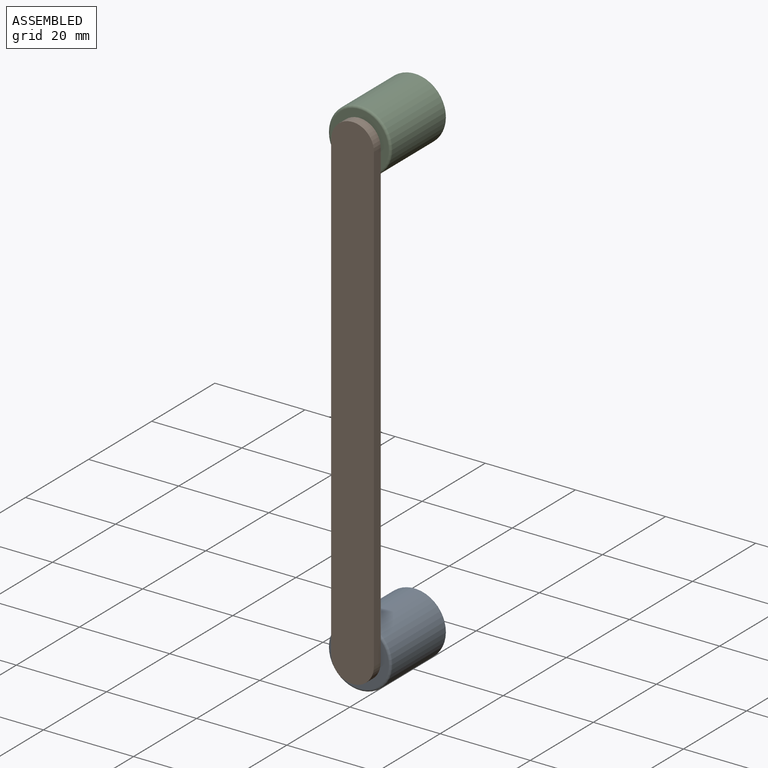
[diagram: assembled view]
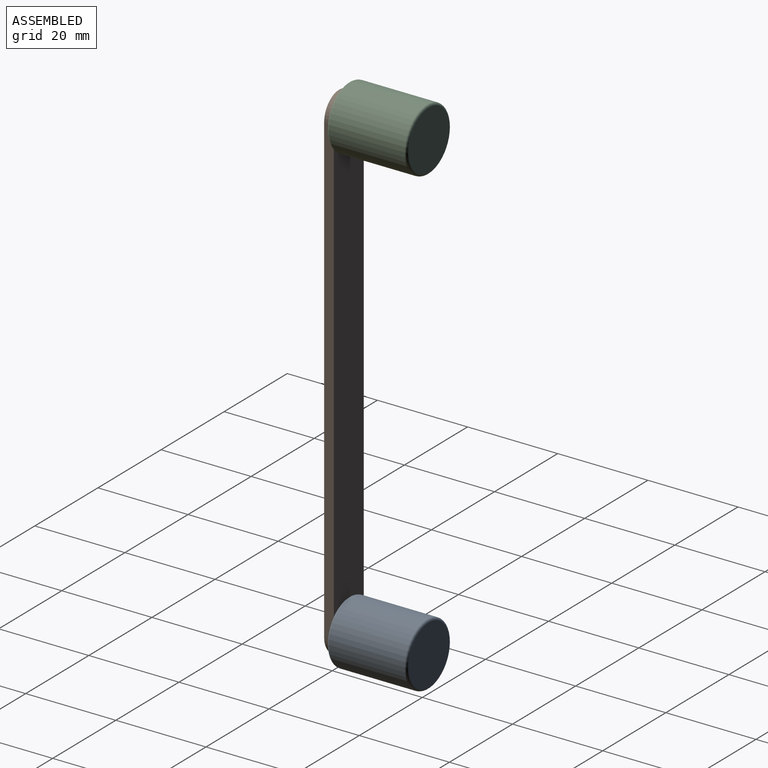
[diagram: assembled view, second angle]
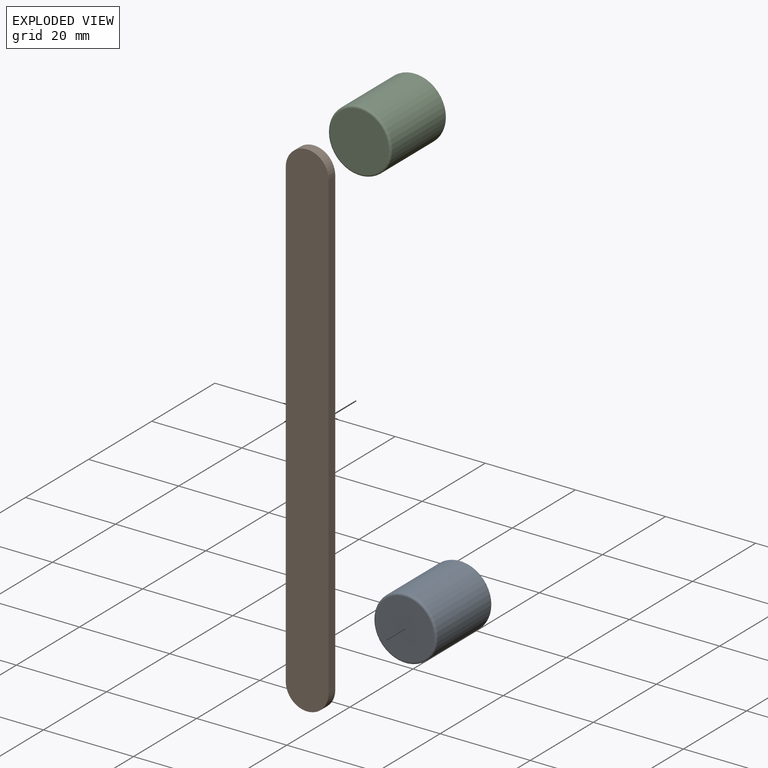
[diagram: exploded view]
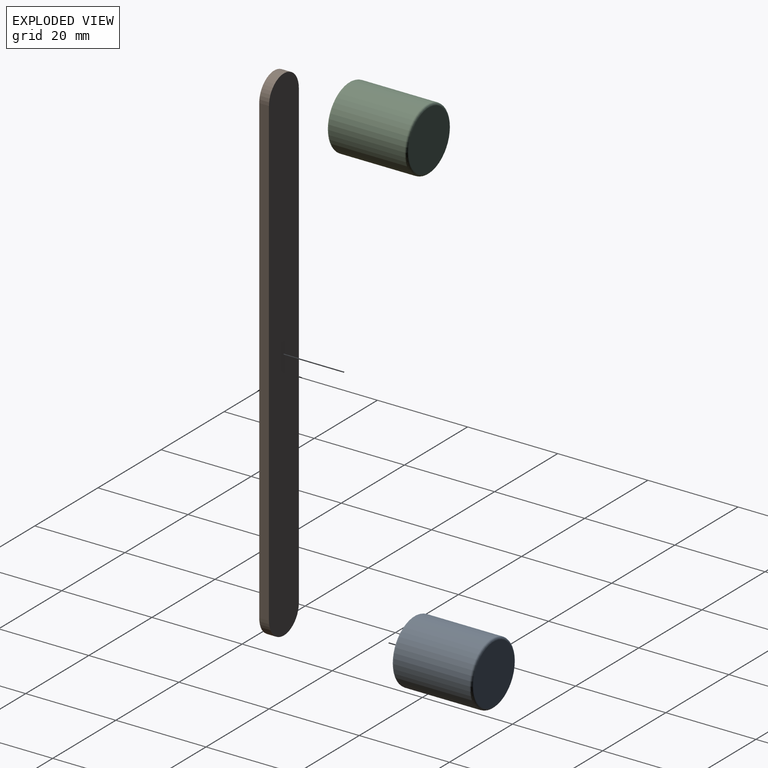
[diagram: exploded view, second angle]
ASSEMBLY  parts=3 mates=2
PART A: 5 faces, bbox 15.1x15.1x17.8 mm
  f0: plane 12.95x12.95mm, normal (0,0,1), area 131.8mm2, adj f4
  f1: plane 12.95x12.95mm, normal (0,0,-1), area 131.8mm2, adj f3
  f2: cylinder r=6.99mm len=16.76mm, axis (0,0,1), area 735.7mm2, adj f3,f4
  f3: torus R=6.48mm, axis (0,0,-1), area 34.1mm2, adj f1,f2
  f4: torus R=6.48mm, axis (0,0,1), area 34.1mm2, adj f0,f2
PART B: 6 faces, bbox 9.5x2.2x112.7 mm
  f0: cylinder r=4.74mm len=9.47mm, axis (0,1,0), area 32.1mm2, adj f1,f3,f4,f5
  f1: plane 103.24x2.16mm, normal (-1,0,0), area 222.9mm2, adj f0,f2,f4,f5
  f2: cylinder r=4.74mm len=9.47mm, axis (0,1,0), area 32.1mm2, adj f1,f3,f4,f5
  f3: plane 103.24x2.16mm, normal (1,0,0), area 222.9mm2, adj f0,f2,f4,f5
  f4: plane 112.71x9.47mm, normal (0,-1,0), area 1048.6mm2, adj f0,f1,f2,f3
  f5: plane 112.71x9.47mm, normal (0,1,0), area 1048.6mm2, adj f0,f1,f2,f3
PART C: same geometry as A
PLACE A rot(axis=(1,0,0),90deg) t=(78.21,72.35,-36.16)mm
PLACE B t=(50.9,63.46,15.46)mm
PLACE C rot(axis=(1,0,0),90deg) t=(78.21,72.35,67.07)mm
MATE fastened A.f2 <-> B.f2  axis (0,-1,0) through (19.67,63.46,-36.16)mm
MATE fastened B.f0 <-> C.f2  axis (0,1,0) through (19.67,63.46,67.07)mm
